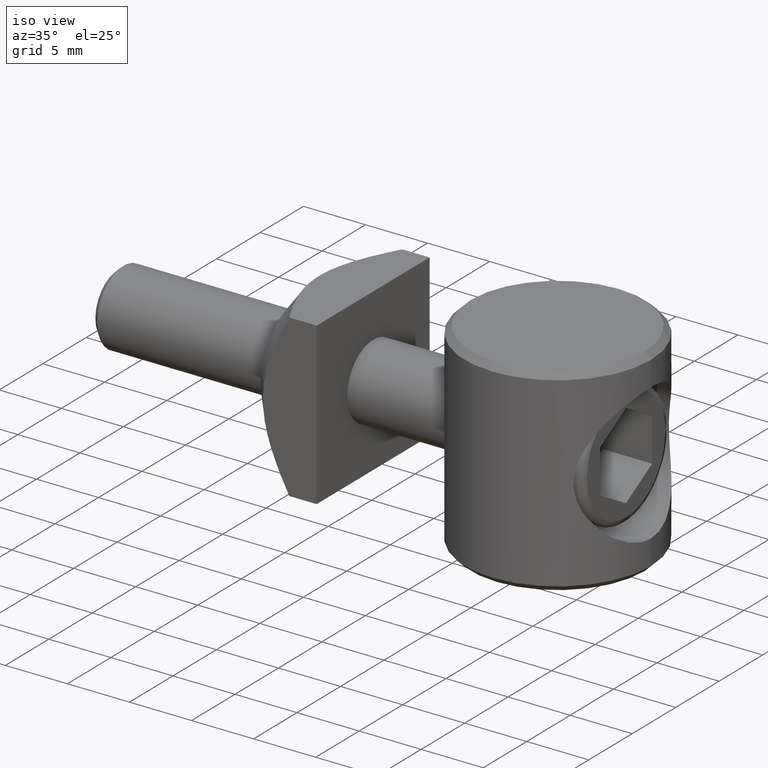
[diagram: clean part render]
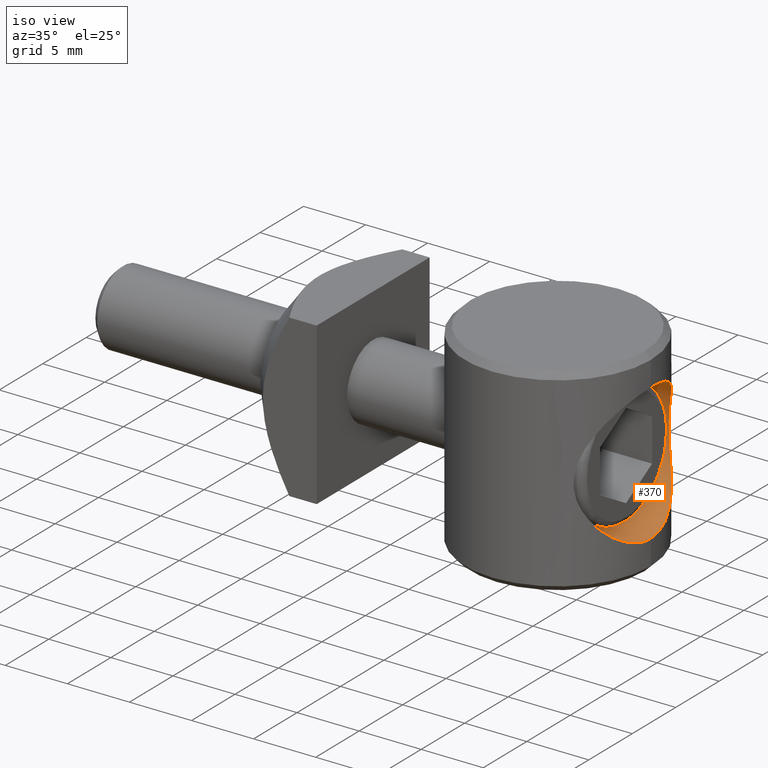
[diagram: same view with one face highlighted and labeled with its STEP entity id]
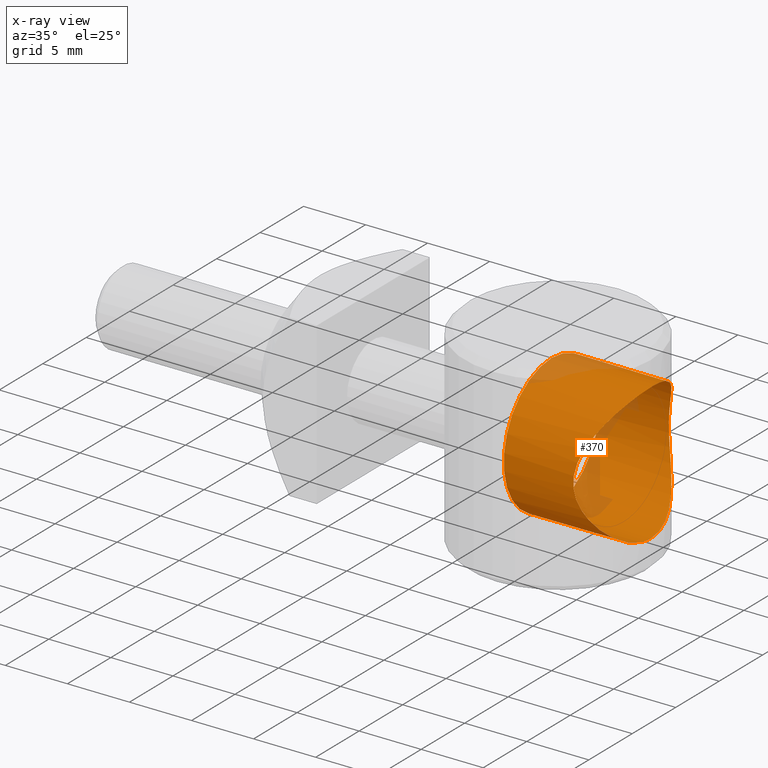
[diagram: x-ray of the same camera — body ghosted, the highlighted face saturated]
A machine part, iso view. The second image highlights one B-rep face of the part: STEP entity #370.
The next image is the same camera in x-ray: the body ghosted, the highlighted face saturated — about 13% of this face is hidden behind the body in this view.
In plain terms, the highlighted cylindrical surface (bore or boss wall) has radius 5.5 mm, axis along (-1, 0, 0).
Its self-contained STEP definition (entity closure, byte-faithful):
#79=CARTESIAN_POINT('',(7.499999999969987,0.0,2.499999999990450));
#80=VERTEX_POINT('',#79);
#87=CARTESIAN_POINT('',(7.499999999969987,4.547474E-013,13.499999999945885));
#88=VERTEX_POINT('',#87);
#89=CARTESIAN_POINT('',(7.499999999969987,0.0,13.499999999945885));
#90=CARTESIAN_POINT('',(7.499999999969987,-0.187235908891580,13.499999999945885));
#91=CARTESIAN_POINT('',(7.482318753180607,-0.658062693658849,13.475907831847053));
#92=CARTESIAN_POINT('',(7.383592300483997,-1.401587189841393,13.340808267023021));
#93=CARTESIAN_POINT('',(7.184150381241580,-2.204382105711829,13.062681818257261));
#94=CARTESIAN_POINT('',(6.889814804196703,-3.004844032174333,12.638228145589437));
#95=CARTESIAN_POINT('',(6.503314138706173,-3.769166404371390,12.048509684587316));
#96=CARTESIAN_POINT('',(5.998734376666107,-4.532632487986575,11.193829623452075));
#97=CARTESIAN_POINT('',(5.504999607842365,-5.106869368244134,10.169439394810524));
#98=CARTESIAN_POINT('',(5.163247851778579,-5.441825369808157,9.014727429491359));
#99=CARTESIAN_POINT('',(5.061392866754886,-5.534225111557134,7.925359238446163));
#100=CARTESIAN_POINT('',(5.196070737490118,-5.411412632272004,6.825386722086023));
#101=CARTESIAN_POINT('',(5.559409688521555,-5.048788684413012,5.707295535908088));
#102=CARTESIAN_POINT('',(6.070100531007483,-4.437756150622590,4.673451869731707));
#103=CARTESIAN_POINT('',(6.645278585985579,-3.539782545652543,3.721383316711581));
#104=CARTESIAN_POINT('',(7.142909849373154,-2.417789766112037,2.992261969466199));
#105=CARTESIAN_POINT('',(7.441589650903552,-1.168517132548914,2.579340847030380));
#106=CARTESIAN_POINT('',(7.499999999969987,-0.353388568259561,2.499999999990450));
#107=CARTESIAN_POINT('',(7.499999999969987,0.0,2.499999999990450));
#108=B_SPLINE_CURVE_WITH_KNOTS('',3,(#89,#90,#91,#92,#93,#94,#95,#96,#97,#98,#99,#100,#101,#102,#103,#104,#105,#106,#107),.UNSPECIFIED.,.F.,.U.,(4,1,1,1,1,1,1,1,1,1,1,1,1,1,1,1,4),(0.0,0.562058006759199,1.411747737096331,2.276739218720677,3.169853864779821,4.260053581389174,5.383623289509268,6.913566546391490,8.052062323482849,9.105246721995343,10.175057685871481,11.364022147298819,12.768548674373111,14.065752031374407,15.632801490503576,17.011669284472173,18.074299974627817),.UNSPECIFIED.);
#109=EDGE_CURVE('',#88,#80,#108,.T.);
#136=CARTESIAN_POINT('',(7.499999999969987,4.547474E-013,2.499999999990450));
#137=CARTESIAN_POINT('',(7.499999999969987,0.353388568260470,2.499999999990450));
#138=CARTESIAN_POINT('',(7.441589650902188,1.168517132550278,2.579340847031290));
#139=CARTESIAN_POINT('',(7.142909849373609,2.417789766114311,2.992261969467108));
#140=CARTESIAN_POINT('',(6.645278585986489,3.539782545653452,3.721383316712945));
#141=CARTESIAN_POINT('',(6.070100531007483,4.437756150623500,4.673451869731707));
#142=CARTESIAN_POINT('',(5.559409688520645,5.048788684413921,5.707295535907633));
#143=CARTESIAN_POINT('',(5.196070737491027,5.411412632272459,6.825386722086932));
#144=CARTESIAN_POINT('',(5.061392866754432,5.534225111557589,7.925359238446617));
#145=CARTESIAN_POINT('',(5.163247851778579,5.441825369808157,9.014727429492723));
#146=CARTESIAN_POINT('',(5.504999607842365,5.106869368244134,10.169439394809160));
#147=CARTESIAN_POINT('',(5.998734376666107,4.532632487987485,11.193829623451620));
#148=CARTESIAN_POINT('',(6.503314138705719,3.769166404371390,12.048509684585497));
#149=CARTESIAN_POINT('',(6.889814804196249,3.004844032174788,12.638228145589437));
#150=CARTESIAN_POINT('',(7.184150381242034,2.204382105712284,13.062681818256806));
#151=CARTESIAN_POINT('',(7.383592300482633,1.401587189841848,13.340808267020748));
#152=CARTESIAN_POINT('',(7.482318753180152,0.658062693659303,13.475907831846598));
#153=CARTESIAN_POINT('',(7.499999999969987,0.187235908892035,13.499999999945885));
#154=CARTESIAN_POINT('',(7.499999999969987,4.547474E-013,13.499999999945885));
#155=B_SPLINE_CURVE_WITH_KNOTS('',3,(#136,#137,#138,#139,#140,#141,#142,#143,#144,#145,#146,#147,#148,#149,#150,#151,#152,#153,#154),.UNSPECIFIED.,.F.,.U.,(4,1,1,1,1,1,1,1,1,1,1,1,1,1,1,1,4),(0.0,1.062630690157268,2.441498484126401,4.008547943254942,5.305751300252759,6.710277827330080,7.899242288757689,8.969053252632898,10.022237651144387,11.160733428236464,12.690676685118545,13.814246393238646,14.904446109847905,15.797560755907053,16.662552237531397,17.512241967868533,18.074299974627731),.UNSPECIFIED.);
#156=EDGE_CURVE('',#80,#88,#155,.T.);
#327=CARTESIAN_POINT('',(-0.499999999998181,3.367779E-016,13.499999999945885));
#328=VERTEX_POINT('',#327);
#329=CARTESIAN_POINT('',(-0.499999999998181,0.0,2.499999999990450));
#330=VERTEX_POINT('',#329);
#331=CARTESIAN_POINT('',(-0.499999999998181,0.0,7.999999999968168));
#332=DIRECTION('',(-1.0,0.0,0.0));
#333=DIRECTION('',(0.0,-6.123234E-017,-1.0));
#334=AXIS2_PLACEMENT_3D('',#331,#332,#333);
#335=CIRCLE('',#334,5.499999999977717);
#336=EDGE_CURVE('',#328,#330,#335,.T.);
#338=CARTESIAN_POINT('',(-0.499999999998181,0.0,7.999999999968168));
#339=DIRECTION('',(-1.0,0.0,0.0));
#340=DIRECTION('',(0.0,-6.123234E-017,-1.0));
#341=AXIS2_PLACEMENT_3D('',#338,#339,#340);
#342=CIRCLE('',#341,5.499999999977717);
#343=EDGE_CURVE('',#330,#328,#342,.T.);
#352=CARTESIAN_POINT('',(-0.499999999998181,0.0,7.999999999968168));
#353=DIRECTION('',(-1.0,0.0,0.0));
#354=DIRECTION('',(0.0,-6.123234E-017,-1.0));
#355=AXIS2_PLACEMENT_3D('',#352,#353,#354);
#356=CYLINDRICAL_SURFACE('',#355,5.499999999977717);
#357=ORIENTED_EDGE('',*,*,#343,.T.);
#358=ORIENTED_EDGE('',*,*,#336,.T.);
#359=CARTESIAN_POINT('',(-0.499999999998181,0.0,2.499999999990450));
#360=DIRECTION('',(1.0,0.0,0.0));
#361=VECTOR('',#360,7.999999999968168);
#362=LINE('',#359,#361);
#363=EDGE_CURVE('',#330,#80,#362,.T.);
#364=ORIENTED_EDGE('',*,*,#363,.T.);
#365=ORIENTED_EDGE('',*,*,#156,.T.);
#366=ORIENTED_EDGE('',*,*,#109,.T.);
#367=ORIENTED_EDGE('',*,*,#363,.F.);
#368=EDGE_LOOP('',(#357,#358,#364,#365,#366,#367));
#369=FACE_OUTER_BOUND('',#368,.T.);
#370=ADVANCED_FACE('',(#369),#356,.F.);